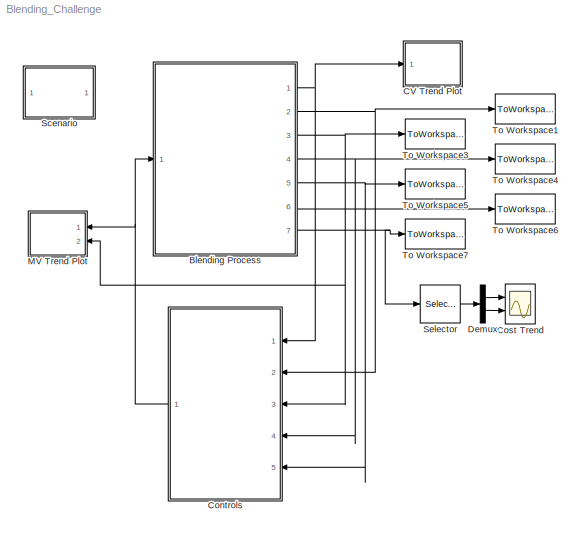
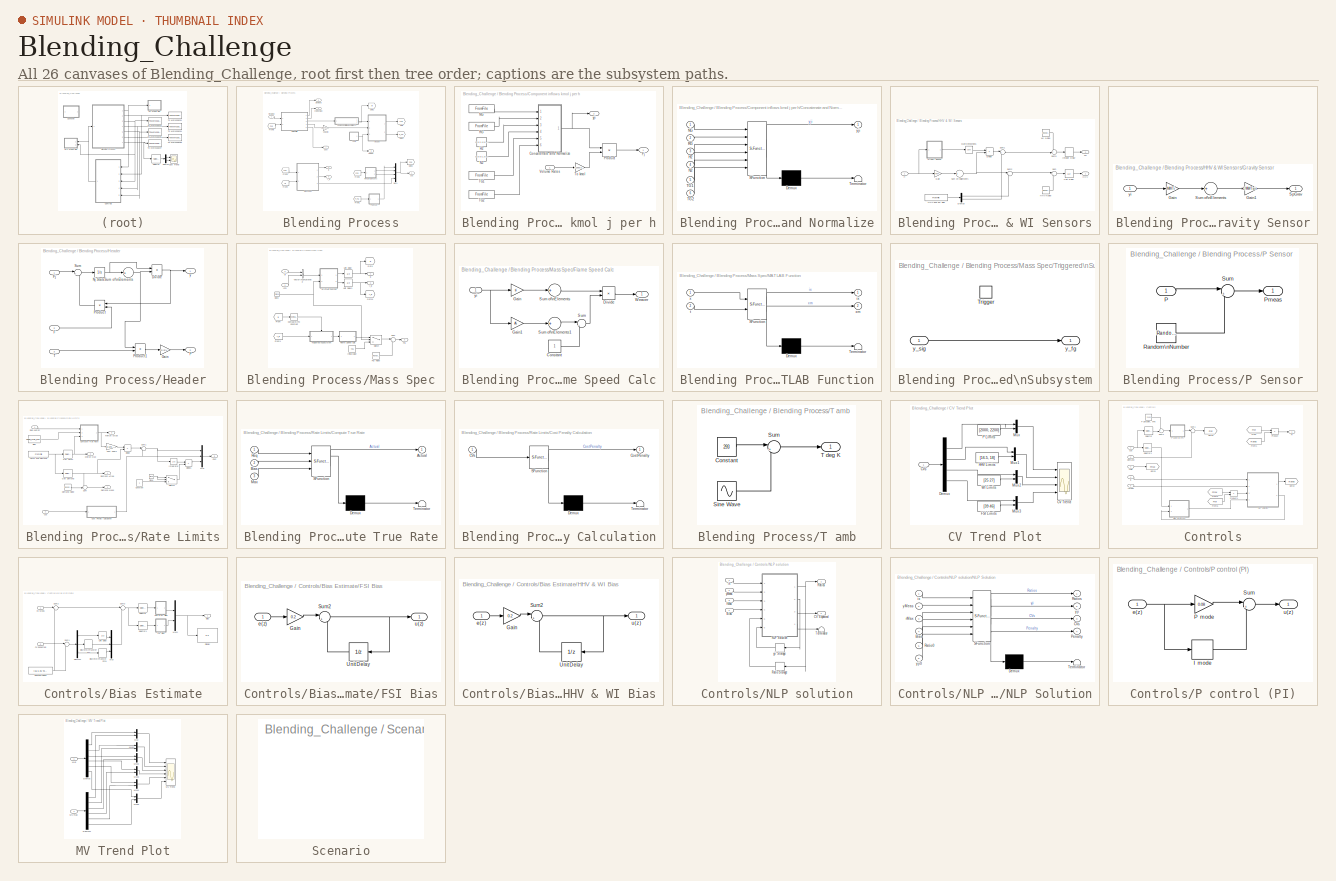
[diagram: thumbnail index - all 26 canvases of the model, root first then tree order]
MODEL Blending_Challenge
KIND model
CONFIG InitFcn = FG_Initialize_Data
CONFIG StopFcn = FG_Cleanup_Data
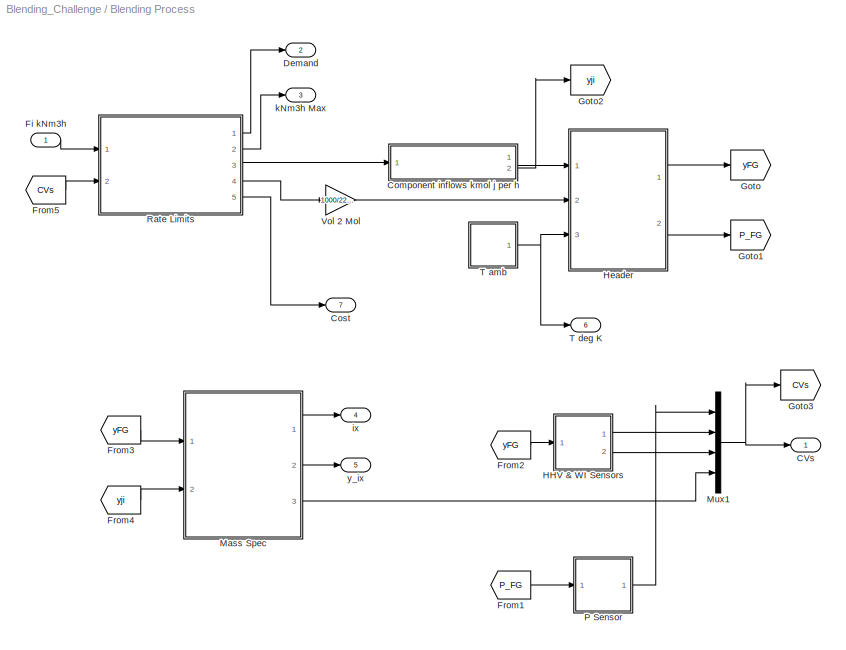
BLOCK [SubSystem] Blending Process
  Ports = [1, 7]
  RequestExecContextInheritance = off
  SID = 861
BLOCK [Outport] Blending Process/CVs
  IconDisplay = Port number
  SID = 991
  SampleTime = 20/3600
BLOCK [SubSystem] Blending Process/Component inflows kmol j per h
  Ports = [1, 2]
  RequestExecContextInheritance = off
  SID = 863
BLOCK [SubSystem] Blending Process/Component inflows kmol j per h/Concatenate and Normalize
  ErrorFcn = Stateflow.Translate.translate
  PermitHierarchicalResolution = ExplicitOnly
  Ports = [6, 1]
  RequestExecContextInheritance = off
  SFBlockType = MATLAB Function
  SID = 865
  TreatAsAtomicUnit = on
BLOCK [Demux] Blending Process/Component inflows kmol j per h/Concatenate and Normalize/ Demux 
  Outputs = 1
  Ports = [1, 1]
  SID = 865::32
BLOCK [S-Function] Blending Process/Component inflows kmol j per h/Concatenate and Normalize/ SFunction 
  EnableBusSupport = off
  FunctionName = sf_sfun
  PortCounts = [6 2]
  Ports = [6, 2]
  SFcnIsStateOwnerBlock = off
  SFunctionDeploymentMode = off
  SID = 865::31
  Tag = Stateflow S-Function 2
BLOCK [Terminator] Blending Process/Component inflows kmol j per h/Concatenate and Normalize/ Terminator 
  SID = 865::33
BLOCK [Inport] Blending Process/Component inflows kmol j per h/Concatenate and Normalize/H2
  IconDisplay = Port number
  Port = 3
  SID = 865::19
BLOCK [Inport] Blending Process/Component inflows kmol j per h/Concatenate and Normalize/N2
  IconDisplay = Port number
  Port = 4
  SID = 865::20
BLOCK [Inport] Blending Process/Component inflows kmol j per h/Concatenate and Normalize/NG
  IconDisplay = Port number
  SID = 865::1
BLOCK [Inport] Blending Process/Component inflows kmol j per h/Concatenate and Normalize/RG
  IconDisplay = Port number
  Port = 2
  SID = 865::18
BLOCK [Inport] Blending Process/Component inflows kmol j per h/Concatenate and Normalize/TG1
  IconDisplay = Port number
  Port = 5
  SID = 865::21
BLOCK [Inport] Blending Process/Component inflows kmol j per h/Concatenate and Normalize/TG2
  IconDisplay = Port number
  Port = 6
  SID = 865::22
BLOCK [Outport] Blending Process/Component inflows kmol j per h/Concatenate and Normalize/yji
  IconDisplay = Port number
  SID = 865::5
BLOCK [Outport] Blending Process/Component inflows kmol j per h/Fj
  IconDisplay = Port number
  SID = 875
BLOCK [Constant] Blending Process/Component inflows kmol j per h/H2
  SID = 867
  SampleTime = 20/3600
  Value = [0 0 1 0 0 0]'
  VectorParams1D = off
BLOCK [Constant] Blending Process/Component inflows kmol j per h/N2
  SID = 868
  SampleTime = 20/3600
  Value = [0 0 0 1 0 0]'
  VectorParams1D = off
BLOCK [FromFile] Blending Process/Component inflows kmol j per h/NG
  ExtrapolationAfterLastDataPoint = Hold last value
  ExtrapolationBeforeFirstDataPoint = Hold first value
  FileName = ScenarioNG
  SID = 869
  SampleTime = 20/3600
BLOCK [Product] Blending Process/Component inflows kmol j per h/Product
  InputSameDT = off
  Multiplication = Matrix(*)
  OutDataTypeStr = Inherit: Inherit via internal rule
  Ports = [2, 1]
  SID = 870
  SaturateOnIntegerOverflow = off
BLOCK [FromFile] Blending Process/Component inflows kmol j per h/RG
  ExtrapolationAfterLastDataPoint = Hold last value
  ExtrapolationBeforeFirstDataPoint = Hold first value
  FileName = ScenarioRG
  SID = 871
  SampleTime = 20/3600
BLOCK [FromFile] Blending Process/Component inflows kmol j per h/TG1
  ExtrapolationAfterLastDataPoint = Hold last value
  ExtrapolationBeforeFirstDataPoint = Hold first value
  FileName = ScenarioTG1
  SID = 872
  SampleTime = 20/3600
BLOCK [FromFile] Blending Process/Component inflows kmol j per h/TG2
  ExtrapolationAfterLastDataPoint = Hold last value
  ExtrapolationBeforeFirstDataPoint = Hold first value
  FileName = ScenarioTG2
  SID = 873
  SampleTime = 20/3600
BLOCK [Gain] Blending Process/Component inflows kmol j per h/To kmol
  Gain = (1000/22.4)*ones(6,1)
  OutDataTypeStr = Inherit: Inherit via internal rule
  ParamDataTypeStr = Inherit: Inherit via internal rule
  SID = 874
  SaturateOnIntegerOverflow = off
BLOCK [Inport] Blending Process/Component inflows kmol j per h/Volume Rates
  IconDisplay = Port number
  SID = 864
BLOCK [Outport] Blending Process/Component inflows kmol j per h/yji
  IconDisplay = Port number
  Port = 2
  SID = 876
BLOCK [Outport] Blending Process/Cost
  IconDisplay = Port number
  Port = 7
  SID = 998
  SampleTime = 20/3600
BLOCK [Outport] Blending Process/Demand
  IconDisplay = Port number
  Port = 2
  SID = 992
  SampleTime = 20/3600
BLOCK [Inport] Blending Process/Fi  kNm3h
  IconDisplay = Port number
  SID = 862
BLOCK [From] Blending Process/From1
  GotoTag = P_FG
  SID = 877
BLOCK [From] Blending Process/From2
  GotoTag = yFG
  SID = 878
BLOCK [From] Blending Process/From3
  GotoTag = yFG
  SID = 879
BLOCK [From] Blending Process/From4
  GotoTag = yji
  SID = 880
BLOCK [From] Blending Process/From5
  GotoTag = CVs
  SID = 881
BLOCK [Goto] Blending Process/Goto
  GotoTag = yFG
  SID = 882
BLOCK [Goto] Blending Process/Goto1
  GotoTag = P_FG
  SID = 883
BLOCK [Goto] Blending Process/Goto2
  GotoTag = yji
  SID = 884
BLOCK [Goto] Blending Process/Goto3
  GotoTag = CVs
  SID = 885
BLOCK [SubSystem] Blending Process/HHV & WI Sensors
  Ports = [1, 2]
  RequestExecContextInheritance = off
  SID = 1062
BLOCK [Demux] Blending Process/HHV & WI Sensors/Demux
  DisplayOption = bar
  Outputs = 2
  Ports = [1, 2]
  SID = 1064
BLOCK [Product] Blending Process/HHV & WI Sensors/Divide
  InputSameDT = off
  Inputs = /*
  OutDataTypeStr = Inherit: Inherit via internal rule
  Ports = [2, 1]
  RndMeth = Floor
  SID = 1065
  SaturateOnIntegerOverflow = off
BLOCK [Gain] Blending Process/HHV & WI Sensors/Gain
  Gain = HHVi
  OutDataTypeStr = Inherit: Inherit via internal rule
  ParamDataTypeStr = Inherit: Inherit via internal rule
  SID = 1067
  SaturateOnIntegerOverflow = off
BLOCK [SubSystem] Blending Process/HHV & WI Sensors/Gravity Sensor
  Ports = [1, 1]
  RequestExecContextInheritance = off
  SID = 1068
BLOCK [Gain] Blending Process/HHV & WI Sensors/Gravity Sensor/Gain
  Gain = MWTi
  OutDataTypeStr = Inherit: Inherit via internal rule
  ParamDataTypeStr = Inherit: Inherit via internal rule
  SID = 1070
  SaturateOnIntegerOverflow = off
BLOCK [Gain] Blending Process/HHV & WI Sensors/Gravity Sensor/Gain1
  Gain = 1/MWTair
  OutDataTypeStr = Inherit: Inherit via internal rule
  ParamDataTypeStr = Inherit: Inherit via internal rule
  SID = 1071
  SaturateOnIntegerOverflow = off
BLOCK [Outport] Blending Process/HHV & WI Sensors/Gravity Sensor/SpGrav
  IconDisplay = Port number
  SID = 1073
BLOCK [Sum] Blending Process/HHV & WI Sensors/Gravity Sensor/Sum of\nElements
  InputSameDT = off
  Inputs = +
  OutDataTypeStr = Inherit: Inherit via internal rule
  Ports = [1, 1]
  SID = 1072
  SaturateOnIntegerOverflow = off
BLOCK [Inport] Blending Process/HHV & WI Sensors/Gravity Sensor/yi
  IconDisplay = Port number
  PortDimensions = Nc
  SID = 1069
BLOCK [Outport] Blending Process/HHV & WI Sensors/HHV
  IconDisplay = Port number
  SID = 1089
BLOCK [RandomNumber] Blending Process/HHV & WI Sensors/HHV Noise
  SID = 1074
  SampleTime = 20/3600
  Seed = Fuel_Gas_HHV_Seed(FG_Scenario)
  Variance = 0.0049
BLOCK [FromFile] Blending Process/HHV & WI Sensors/HHV and SG bias
  ExtrapolationAfterLastDataPoint = Hold last value
  ExtrapolationBeforeFirstDataPoint = Hold first value
  FileName = ScenarioBias.mat
  SID = 1075
  SampleTime = 20/3600
BLOCK [DiscreteTransferFcn] Blending Process/HHV & WI Sensors/Integer Delay
  Denominator = [1 0 0 0]
  InitialStates = 25
  InputPortMap = u0
  Numerator = 1
  Ports = [1, 1]
  SID = 1156
  SampleTime = 20/3600
BLOCK [Math] Blending Process/HHV & WI Sensors/Math\nFunction1
  Operator = sqrt
  Ports = [1, 1]
  SID = 1077
BLOCK [Sum] Blending Process/HHV & WI Sensors/Sum
  IconShape = round
  InputSameDT = off
  Inputs = |++
  OutDataTypeStr = Inherit: Inherit via internal rule
  Ports = [2, 1]
  SID = 1080
  SaturateOnIntegerOverflow = off
BLOCK [Sum] Blending Process/HHV & WI Sensors/Sum of\nElements
  InputSameDT = off
  Inputs = +
  OutDataTypeStr = Inherit: Inherit via internal rule
  Ports = [1, 1]
  SID = 1081
  SaturateOnIntegerOverflow = off
BLOCK [Sum] Blending Process/HHV & WI Sensors/Sum1
  IconShape = round
  InputSameDT = off
  Inputs = |++
  OutDataTypeStr = Inherit: Inherit via internal rule
  Ports = [2, 1]
  SID = 1095
  SaturateOnIntegerOverflow = off
BLOCK [Sum] Blending Process/HHV & WI Sensors/Sum2
  IconShape = round
  InputSameDT = off
  Inputs = |++
  OutDataTypeStr = Inherit: Inherit via internal rule
  Ports = [2, 1]
  SID = 1092
  SaturateOnIntegerOverflow = off
BLOCK [Sum] Blending Process/HHV & WI Sensors/Sum3
  IconShape = round
  InputSameDT = off
  Inputs = ++|
  OutDataTypeStr = Inherit: Inherit via internal rule
  Ports = [2, 1]
  SID = 1096
  SaturateOnIntegerOverflow = off
BLOCK [UnitDelay] Blending Process/HHV & WI Sensors/Unit Delay
  HasFrameUpgradeWarning = on
  InitialCondition = 16.5
  SID = 1087
  SampleTime = 20/3600
BLOCK [Outport] Blending Process/HHV & WI Sensors/WI
  IconDisplay = Port number
  Port = 2
  SID = 1090
BLOCK [RandomNumber] Blending Process/HHV & WI Sensors/WI Noise
  SID = 1088
  SampleTime = 20/3600
  Seed = Fuel_Gas_WI_Seed(FG_Scenario)
  Variance = 0.0049
BLOCK [Inport] Blending Process/HHV & WI Sensors/yi
  IconDisplay = Port number
  PortDimensions = Nc
  SID = 1063
  SampleTime = 20/3600
BLOCK [SubSystem] Blending Process/Header
  Ports = [3, 2]
  RequestExecContextInheritance = off
  SID = 910
BLOCK [Product] Blending Process/Header/Divide
  InputSameDT = off
  Inputs = */
  OutDataTypeStr = Inherit: Inherit via internal rule
  Ports = [2, 1]
  RndMeth = Floor
  SID = 914
  SaturateOnIntegerOverflow = off
BLOCK [Inport] Blending Process/Header/F
  IconDisplay = Port number
  Port = 2
  PortDimensions = 1
  SID = 912
BLOCK [Inport] Blending Process/Header/Fj
  IconDisplay = Port number
  PortDimensions = Nc
  SID = 911
BLOCK [Gain] Blending Process/Header/Gain
  Gain = R*Z/V
  OutDataTypeStr = Inherit: Inherit via internal rule
  ParamDataTypeStr = Inherit: Inherit via internal rule
  SID = 915
  SaturateOnIntegerOverflow = off
BLOCK [Integrator] Blending Process/Header/Nj States
  InitialCondition = Ni0
  LimitOutput = on
  LowerSaturationLimit = 0
  Ports = [1, 1]
  SID = 916
BLOCK [Outport] Blending Process/Header/P
  IconDisplay = Port number
  Port = 2
  SID = 922
BLOCK [Product] Blending Process/Header/Product
  InputSameDT = off
  OutDataTypeStr = Inherit: Inherit via internal rule
  Ports = [2, 1]
  SID = 917
  SaturateOnIntegerOverflow = off
BLOCK [Product] Blending Process/Header/Product1
  InputSameDT = off
  OutDataTypeStr = Inherit: Inherit via internal rule
  Ports = [2, 1]
  SID = 918
  SaturateOnIntegerOverflow = off
BLOCK [Sum] Blending Process/Header/Sum
  IconShape = round
  InputSameDT = off
  Inputs = |+-
  OutDataTypeStr = Inherit: Inherit via internal rule
  Ports = [2, 1]
  SID = 919
  SaturateOnIntegerOverflow = off
BLOCK [Sum] Blending Process/Header/Sum of\nElements
  InputSameDT = off
  Inputs = +
  OutDataTypeStr = Inherit: Inherit via internal rule
  Ports = [1, 1]
  SID = 920
  SaturateOnIntegerOverflow = off
BLOCK [Inport] Blending Process/Header/T
  IconDisplay = Port number
  Port = 3
  PortDimensions = 1
  SID = 913
BLOCK [Outport] Blending Process/Header/y
  IconDisplay = Port number
  SID = 921
BLOCK [SubSystem] Blending Process/Mass Spec
  Ports = [2, 3]
  RequestExecContextInheritance = off
  SID = 923
BLOCK [Clock] Blending Process/Mass Spec/Clock
  SID = 926
BLOCK [Reference] Blending Process/Mass Spec/Compare\nTo Constant  REF=simulink/Logic and Bit\nOperations/Compare\nTo Constant
  OutDataTypeStr = uint8
  Ports = [1, 1]
  SID = 927
  SourceBlock = simulink/Logic and Bit\nOperations/Compare\nTo Constant
  SourceProductBaseCode = SL
  SourceProductName = Simulink
  SourceType = Compare To Constant
  ZeroCross = on
  const = 7
  relop = ==
BLOCK [Outport] Blending Process/Mass Spec/FSI
  IconDisplay = Port number
  Port = 3
  SID = 954
  SampleTime = 20/3600
BLOCK [RandomNumber] Blending Process/Mass Spec/FSI Noise
  SID = 1151
  SampleTime = 10/60
  Seed = Fuel_Gas_HHV_Seed(FG_Scenario)+4324
  Variance = 0.0049
BLOCK [SubSystem] Blending Process/Mass Spec/Flame Speed Calc
  Ports = [1, 1]
  RequestExecContextInheritance = off
  SID = 928
BLOCK [Constant] Blending Process/Mass Spec/Flame Speed Calc/Constant
  SID = 930
BLOCK [Product] Blending Process/Mass Spec/Flame Speed Calc/Divide
  InputSameDT = off
  Inputs = */
  OutDataTypeStr = Inherit: Inherit via internal rule
  Ports = [2, 1]
  RndMeth = Floor
  SID = 931
  SaturateOnIntegerOverflow = off
BLOCK [Gain] Blending Process/Mass Spec/Flame Speed Calc/Gain
  Gain = si
  OutDataTypeStr = Inherit: Inherit via internal rule
  ParamDataTypeStr = Inherit: Inherit via internal rule
  SID = 932
  SaturateOnIntegerOverflow = off
BLOCK [Gain] Blending Process/Mass Spec/Flame Speed Calc/Gain1
  Gain = Ai
  OutDataTypeStr = Inherit: Inherit via internal rule
  ParamDataTypeStr = Inherit: Inherit via internal rule
  SID = 933
  SaturateOnIntegerOverflow = off
BLOCK [Sum] Blending Process/Mass Spec/Flame Speed Calc/Sum
  IconShape = round
  InputSameDT = off
  Inputs = |++
  OutDataTypeStr = Inherit: Inherit via internal rule
  Ports = [2, 1]
  SID = 934
  SaturateOnIntegerOverflow = off
BLOCK [Sum] Blending Process/Mass Spec/Flame Speed Calc/Sum of\nElements
  InputSameDT = off
  Inputs = +
  OutDataTypeStr = Inherit: Inherit via internal rule
  Ports = [1, 1]
  SID = 935
  SaturateOnIntegerOverflow = off
BLOCK [Sum] Blending Process/Mass Spec/Flame Speed Calc/Sum of\nElements1
  InputSameDT = off
  Inputs = +
  OutDataTypeStr = Inherit: Inherit via internal rule
  Ports = [1, 1]
  SID = 936
  SaturateOnIntegerOverflow = off
BLOCK [Outport] Blending Process/Mass Spec/Flame Speed Calc/Weaver
  IconDisplay = Port number
  SID = 937
BLOCK [Inport] Blending Process/Mass Spec/Flame Speed Calc/yi
  IconDisplay = Port number
  PortDimensions = Nc
  SID = 929
BLOCK [From] Blending Process/Mass Spec/From
  GotoTag = ix
  SID = 938
BLOCK [From] Blending Process/Mass Spec/From1
  GotoTag = y_ix
  SID = 939
BLOCK [Goto] Blending Process/Mass Spec/Goto
  GotoTag = ix
  SID = 940
BLOCK [Goto] Blending Process/Mass Spec/Goto1
  GotoTag = y_ix
  SID = 941
BLOCK [Constant] Blending Process/Mass Spec/Initial value
  SID = 942
  Value = 43.6
BLOCK [SubSystem] Blending Process/Mass Spec/MATLAB Function
  ErrorFcn = Stateflow.Translate.translate
  PermitHierarchicalResolution = ExplicitOnly
  Ports = [2, 2]
  RequestExecContextInheritance = off
  SFBlockType = MATLAB Function
  SID = 943
  SystemSampleTime = 2/60
  TreatAsAtomicUnit = on
BLOCK [Demux] Blending Process/Mass Spec/MATLAB Function/ Demux 
  Outputs = 1
  Ports = [1, 1]
  SID = 943::33
BLOCK [S-Function] Blending Process/Mass Spec/MATLAB Function/ SFunction 
  EnableBusSupport = off
  FunctionName = sf_sfun
  PortCounts = [2 3]
  Ports = [2, 3]
  SFcnIsStateOwnerBlock = off
  SFunctionDeploymentMode = off
  SID = 943::32
  Tag = Stateflow S-Function 3
BLOCK [Terminator] Blending Process/Mass Spec/MATLAB Function/ Terminator 
  SID = 943::34
BLOCK [Outport] Blending Process/Mass Spec/MATLAB Function/ix
  IconDisplay = Port number
  SID = 943::5
BLOCK [Inport] Blending Process/Mass Spec/MATLAB Function/t
  IconDisplay = Port number
  Port = 2
  SID = 943::18
BLOCK [Inport] Blending Process/Mass Spec/MATLAB Function/x
  IconDisplay = Port number
  SID = 943::1
BLOCK [Outport] Blending Process/Mass Spec/MATLAB Function/xm
  IconDisplay = Port number
  Port = 2
  SID = 943::19
BLOCK [Sum] Blending Process/Mass Spec/Sum
  IconShape = round
  InputSameDT = off
  Inputs = |++
  OutDataTypeStr = Inherit: Inherit via internal rule
  Ports = [2, 1]
  SID = 1152
  SaturateOnIntegerOverflow = off
BLOCK [Switch] Blending Process/Mass Spec/Switch
  InputSameDT = off
  SID = 944
  SampleTime = 2/60
  SaturateOnIntegerOverflow = off
  Threshold = 12/60
BLOCK [SubSystem] Blending Process/Mass Spec/Triggered\nSubsystem
  Ports = [1, 1, 0, 1]
  RequestExecContextInheritance = off
  SID = 945
  TreatAsAtomicUnit = on
BLOCK [TriggerPort] Blending Process/Mass Spec/Triggered\nSubsystem/Trigger
  Ports = []
  SID = 947
  StatesWhenEnabling = held
  VariantControl = (inherit)
BLOCK [Outport] Blending Process/Mass Spec/Triggered\nSubsystem/y_fg
  IconDisplay = Port number
  SID = 948
BLOCK [Inport] Blending Process/Mass Spec/Triggered\nSubsystem/y_sig
  IconDisplay = Port number
  SID = 946
BLOCK [UnitDelay] Blending Process/Mass Spec/Unit Delay
  HasFrameUpgradeWarning = on
  InitialCondition = 7
  SID = 949
  SampleTime = 2/60
BLOCK [UnitDelay] Blending Process/Mass Spec/Unit Delay1
  HasFrameUpgradeWarning = on
  InitialCondition = [14.7311, 1.0107, 47.8064, 4.5173, 9.6596, 5.9680]'/83.6931
  SID = 950
  SampleTime = 2/60
BLOCK [Concatenate] Blending Process/Mass Spec/Vector\nConcatenate
  ConcatenateDimension = 2
  Mode = Multidimensional array
  Ports = [2, 1]
  SID = 951
BLOCK [Outport] Blending Process/Mass Spec/ix
  IconDisplay = Port number
  SID = 952
  SampleTime = 20/3600
BLOCK [Inport] Blending Process/Mass Spec/yFG
  IconDisplay = Port number
  SID = 924
  SampleTime = 20/3600
BLOCK [Outport] Blending Process/Mass Spec/y_ix
  IconDisplay = Port number
  Port = 2
  SID = 953
  SampleTime = 20/3600
BLOCK [Inport] Blending Process/Mass Spec/yji
  IconDisplay = Port number
  Port = 2
  SID = 925
  SampleTime = 20/3600
BLOCK [Mux] Blending Process/Mux1
  DisplayOption = bar
  Ports = [4, 1]
  SID = 955
BLOCK [SubSystem] Blending Process/P Sensor
  Ports = [1, 1]
  RequestExecContextInheritance = off
  SID = 956
BLOCK [Inport] Blending Process/P Sensor/P
  IconDisplay = Port number
  PortDimensions = 1
  SID = 957
  SampleTime = 20/3600
BLOCK [Outport] Blending Process/P Sensor/Pmeas
  IconDisplay = Port number
  SID = 960
BLOCK [RandomNumber] Blending Process/P Sensor/Random\nNumber
  SID = 958
  SampleTime = 20/3600
  Seed = 4983498
  Variance = 25
BLOCK [Sum] Blending Process/P Sensor/Sum
  IconShape = round
  InputSameDT = off
  Inputs = |++
  OutDataTypeStr = Inherit: Inherit via internal rule
  Ports = [2, 1]
  SID = 959
  SaturateOnIntegerOverflow = off
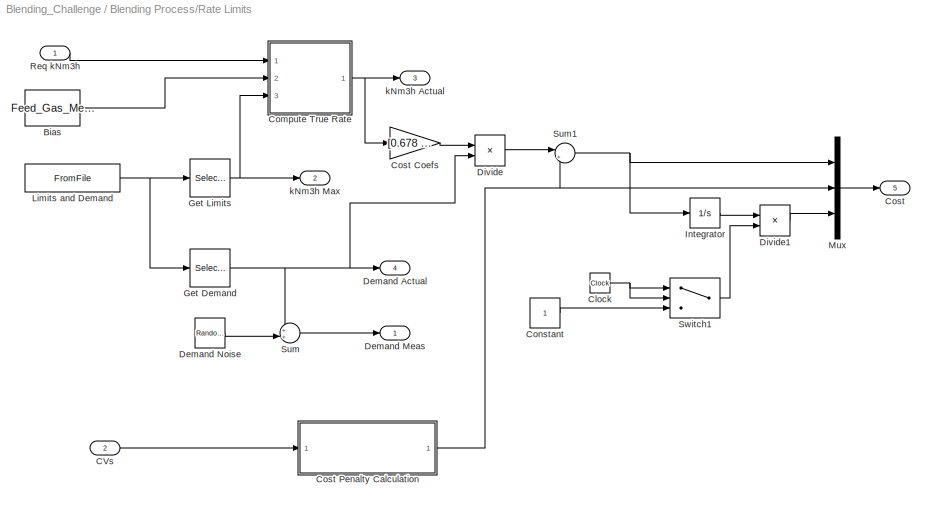
BLOCK [SubSystem] Blending Process/Rate Limits
  Ports = [2, 5]
  RequestExecContextInheritance = off
  SID = 961
BLOCK [Constant] Blending Process/Rate Limits/Bias
  SID = 1094
  Value = Feed_Gas_Metering_Bias(FG_Scenario,:)
BLOCK [Inport] Blending Process/Rate Limits/CVs
  IconDisplay = Port number
  OutDataTypeStr = double
  OutMin = 0
  Port = 2
  PortDimensions = 4
  SID = 963
BLOCK [Clock] Blending Process/Rate Limits/Clock
  SID = 964
BLOCK [SubSystem] Blending Process/Rate Limits/Compute True Rate
  ErrorFcn = Stateflow.Translate.translate
  PermitHierarchicalResolution = ExplicitOnly
  Ports = [3, 1]
  RequestExecContextInheritance = off
  SFBlockType = MATLAB Function
  SID = 1093
  TreatAsAtomicUnit = on
BLOCK [Demux] Blending Process/Rate Limits/Compute True Rate/ Demux 
  Outputs = 1
  Ports = [1, 1]
  SID = 1093::29
BLOCK [S-Function] Blending Process/Rate Limits/Compute True Rate/ SFunction 
  EnableBusSupport = off
  FunctionName = sf_sfun
  PortCounts = [3 2]
  Ports = [3, 2]
  SFcnIsStateOwnerBlock = off
  SFunctionDeploymentMode = off
  SID = 1093::28
  Tag = Stateflow S-Function 5
BLOCK [Terminator] Blending Process/Rate Limits/Compute True Rate/ Terminator 
  SID = 1093::30
BLOCK [Outport] Blending Process/Rate Limits/Compute True Rate/Actual
  IconDisplay = Port number
  SID = 1093::5
BLOCK [Inport] Blending Process/Rate Limits/Compute True Rate/Bias
  IconDisplay = Port number
  Port = 2
  SID = 1093::18
BLOCK [Inport] Blending Process/Rate Limits/Compute True Rate/Max
  IconDisplay = Port number
  Port = 3
  SID = 1093::19
BLOCK [Inport] Blending Process/Rate Limits/Compute True Rate/Req
  IconDisplay = Port number
  SID = 1093::1
BLOCK [Constant] Blending Process/Rate Limits/Constant
  SID = 965
BLOCK [Outport] Blending Process/Rate Limits/Cost
  IconDisplay = Port number
  Port = 5
  SID = 984
  SampleTime = 20/3600
BLOCK [Gain] Blending Process/Rate Limits/Cost Coefs
  Gain = [0.678 0.254 0 0.068 0 0]
  Multiplication = Matrix(K*u)
  OutDataTypeStr = Inherit: Inherit via internal rule
  ParamDataTypeStr = Inherit: Inherit via internal rule
  SID = 966
  SaturateOnIntegerOverflow = off
BLOCK [SubSystem] Blending Process/Rate Limits/Cost Penalty Calculation
  ErrorFcn = Stateflow.Translate.translate
  PermitHierarchicalResolution = ExplicitOnly
  Ports = [1, 1]
  RequestExecContextInheritance = off
  SFBlockType = MATLAB Function
  SID = 974
  TreatAsAtomicUnit = on
BLOCK [Demux] Blending Process/Rate Limits/Cost Penalty Calculation/ Demux 
  Outputs = 1
  Ports = [1, 1]
  SID = 974::27
BLOCK [S-Function] Blending Process/Rate Limits/Cost Penalty Calculation/ SFunction 
  EnableBusSupport = off
  FunctionName = sf_sfun
  PortCounts = [1 2]
  Ports = [1, 2]
  SFcnIsStateOwnerBlock = off
  SFunctionDeploymentMode = off
  SID = 974::26
  Tag = Stateflow S-Function 4
BLOCK [Terminator] Blending Process/Rate Limits/Cost Penalty Calculation/ Terminator 
  SID = 974::28
BLOCK [Inport] Blending Process/Rate Limits/Cost Penalty Calculation/CVs
  IconDisplay = Port number
  SID = 974::1
BLOCK [Outport] Blending Process/Rate Limits/Cost Penalty Calculation/CostPenalty
  IconDisplay = Port number
  SID = 974::5
BLOCK [Outport] Blending Process/Rate Limits/Demand Actual
  IconDisplay = Port number
  Port = 4
  SID = 983
  SampleTime = 20/3600
BLOCK [Outport] Blending Process/Rate Limits/Demand Meas
  IconDisplay = Port number
  SID = 980
  SampleTime = 20/3600
BLOCK [RandomNumber] Blending Process/Rate Limits/Demand Noise
  SID = 967
  SampleTime = 10/3600
  Seed = Fuel_Gas_Demand_Seed(FG_Scenario)
  Variance = 0.8
BLOCK [Product] Blending Process/Rate Limits/Divide
  InputSameDT = off
  Inputs = */
  OutDataTypeStr = Inherit: Inherit via internal rule
  Ports = [2, 1]
  RndMeth = Floor
  SID = 968
  SaturateOnIntegerOverflow = off
BLOCK [Product] Blending Process/Rate Limits/Divide1
  InputSameDT = off
  Inputs = */
  OutDataTypeStr = Inherit: Inherit via internal rule
  Ports = [2, 1]
  RndMeth = Floor
  SID = 969
  SaturateOnIntegerOverflow = off
BLOCK [Selector] Blending Process/Rate Limits/Get Demand
  IndexOptions = Index vector (dialog)
  Indices = 7
  InputPortWidth = 7
  OutputSizes = 1
  Ports = [1, 1]
  SID = 970
BLOCK [Selector] Blending Process/Rate Limits/Get Limits
  IndexOptions = Index vector (dialog)
  Indices = 1:6
  InputPortWidth = 7
  OutputSizes = 1
  Ports = [1, 1]
  SID = 971
BLOCK [Integrator] Blending Process/Rate Limits/Integrator
  Ports = [1, 1]
  SID = 972
BLOCK [FromFile] Blending Process/Rate Limits/Limits and Demand
  ExtrapolationAfterLastDataPoint = Hold last value
  ExtrapolationBeforeFirstDataPoint = Hold first value
  FileName = ScenarioAvail.mat
  SID = 973
  SampleTime = 20/3600
BLOCK [Mux] Blending Process/Rate Limits/Mux
  DisplayOption = bar
  Inputs = 3
  Ports = [3, 1]
  SID = 976
BLOCK [Inport] Blending Process/Rate Limits/Req kNm3h
  IconDisplay = Port number
  OutDataTypeStr = double
  OutMin = 0
  PortDimensions = 6
  SID = 962
BLOCK [Sum] Blending Process/Rate Limits/Sum
  IconShape = round
  InputSameDT = off
  Inputs = ++|
  OutDataTypeStr = Inherit: Inherit via internal rule
  Ports = [2, 1]
  SID = 977
  SaturateOnIntegerOverflow = off
BLOCK [Sum] Blending Process/Rate Limits/Sum1
  IconShape = round
  InputSameDT = off
  Inputs = |++
  OutDataTypeStr = Inherit: Inherit via internal rule
  Ports = [2, 1]
  SID = 978
  SaturateOnIntegerOverflow = off
BLOCK [Switch] Blending Process/Rate Limits/Switch1
  Criteria = u2 > Threshold
  InputSameDT = off
  SID = 979
  SaturateOnIntegerOverflow = off
BLOCK [Outport] Blending Process/Rate Limits/kNm3h Actual
  IconDisplay = Port number
  Port = 3
  SID = 982
  SampleTime = 20/3600
BLOCK [Outport] Blending Process/Rate Limits/kNm3h Max
  IconDisplay = Port number
  Port = 2
  SID = 981
  SampleTime = 20/3600
BLOCK [SubSystem] Blending Process/T amb
  Ports = [0, 1]
  RequestExecContextInheritance = off
  SID = 985
BLOCK [Constant] Blending Process/T amb/Constant
  SID = 986
  Value = 293
BLOCK [Sin] Blending Process/T amb/Sine Wave
  Amplitude = 10
  Frequency = 2*pi/24
  Ports = [0, 1]
  SID = 987
  SampleTime = 20/3600
BLOCK [Sum] Blending Process/T amb/Sum
  IconShape = round
  InputSameDT = off
  Inputs = |++
  OutDataTypeStr = Inherit: Inherit via internal rule
  Ports = [2, 1]
  SID = 988
  SaturateOnIntegerOverflow = off
BLOCK [Outport] Blending Process/T amb/T deg K
  IconDisplay = Port number
  SID = 989
BLOCK [Outport] Blending Process/T deg K
  IconDisplay = Port number
  Port = 6
  SID = 997
  SampleTime = 20/3600
BLOCK [Gain] Blending Process/Vol 2 Mol
  Gain = 1000/22.4
  OutDataTypeStr = Inherit: Inherit via internal rule
  ParamDataTypeStr = Inherit: Inherit via internal rule
  SID = 990
  SaturateOnIntegerOverflow = off
BLOCK [Outport] Blending Process/ix
  IconDisplay = Port number
  Port = 4
  SID = 995
  SampleTime = 20/3600
BLOCK [Outport] Blending Process/kNm3h Max
  IconDisplay = Port number
  Port = 3
  SID = 994
  SampleTime = 20/3600
BLOCK [Outport] Blending Process/y_ix
  IconDisplay = Port number
  Port = 5
  SID = 996
  SampleTime = 20/3600
BLOCK [SubSystem] CV Trend Plot
  Ports = [1]
  RequestExecContextInheritance = off
  SID = 416
BLOCK [Scope] CV Trend Plot/CV Trend
  Floating = off
  NumInputPorts = 4
  Ports = [4]
  SID = 422
  ScopeSpecificationString = C++SS(StrPVP('Location','[397, 49, 859, 662]'),StrPVP('Open','on'),StrPVP('ZoomMode','xonly'),MxPVP('AxesTitles',54,'struct(''axes1'',''P, kPa'',''axes2'',''HHV'',''axes3'',''WI'',''axes4'',''FSI'')'),MxPVP('ScopeGraphics',57,'struct(''FigureColor'',''[0.501960784313725 0.501960784313725 0.501960784313725]'',''AxesColor'',''[0 0 0]'',''AxesTickColor'',''[1 1 1]'',''LineColors'',''[1 1 0;1 0 1;0 1 ...<+477ch>
BLOCK [Inport] CV Trend Plot/CVs
  IconDisplay = Port number
  SID = 417
BLOCK [Demux] CV Trend Plot/Demux
  DisplayOption = bar
  Ports = [1, 4]
  SID = 419
BLOCK [Constant] CV Trend Plot/FSI Limits
  SID = 428
  Value = [39 46]
BLOCK [Constant] CV Trend Plot/HHV Limits
  SID = 424
  Value = [16.5, 18]
BLOCK [Mux] CV Trend Plot/Mux
  DisplayOption = bar
  Inputs = 2
  Ports = [2, 1]
  SID = 420
BLOCK [Mux] CV Trend Plot/Mux1
  DisplayOption = bar
  Inputs = 2
  Ports = [2, 1]
  SID = 423
BLOCK [Mux] CV Trend Plot/Mux2
  DisplayOption = bar
  Inputs = 2
  Ports = [2, 1]
  SID = 426
BLOCK [Mux] CV Trend Plot/Mux3
  DisplayOption = bar
  Inputs = 2
  Ports = [2, 1]
  SID = 427
BLOCK [Constant] CV Trend Plot/P Limits
  SID = 421
  Value = [2000, 2200]
BLOCK [Constant] CV Trend Plot/WI Limits
  SID = 425
  Value = [25 27]
BLOCK [SubSystem] Controls
  Ports = [5, 1]
  RequestExecContextInheritance = off
  SID = 320
BLOCK [Inport] Controls/Avail
  IconDisplay = Port number
  Port = 3
  SID = 324
BLOCK [SubSystem] Controls/Bias Estimate
  Ports = [2, 1]
  RequestExecContextInheritance = off
  SID = 1016
BLOCK [Outport] Controls/Bias Estimate/Bias
  IconDisplay = Port number
  SID = 1061
BLOCK [Inport] Controls/Bias Estimate/CV Expected
  IconDisplay = Port number
  Port = 2
  PortDimensions = 3
  SID = 1104
BLOCK [Inport] Controls/Bias Estimate/CV Meas
  IconDisplay = Port number
  PortDimensions = 3
  SID = 1017
BLOCK [Demux] Controls/Bias Estimate/Demux1
  DisplayOption = bar
  Outputs = 3
  Ports = [1, 3]
  SID = 1105
BLOCK [DiscreteTransferFcn] Controls/Bias Estimate/Discrete\nTransfer Fcn
  Denominator = [1 0 0 0]
  InputPortMap = u0
  Ports = [1, 1]
  SID = 1157
  SampleTime = 20/3600
BLOCK [DiscreteTransferFcn] Controls/Bias Estimate/Discrete\nTransfer Fcn1
  Denominator = [1 0 0 0 0 0 0]
  InputPortMap = u0
  Ports = [1, 1]
  SID = 1158
  SampleTime = 20/3600
BLOCK [Display] Controls/Bias Estimate/Display
  Decimation = 1
  Ports = [1]
  SID = 1112
BLOCK [SubSystem] Controls/Bias Estimate/FSI Bias
  Ports = [1, 1]
  RequestExecContextInheritance = off
  SID = 1131
BLOCK [Gain] Controls/Bias Estimate/FSI Bias/Gain
  Gain = 0.2
  OutDataTypeStr = Inherit: Inherit via internal rule
  ParamDataTypeStr = Inherit: Inherit via internal rule
  SID = 1150
  SaturateOnIntegerOverflow = off
BLOCK [Sum] Controls/Bias Estimate/FSI Bias/Sum2
  IconShape = round
  InputSameDT = off
  Inputs = |++
  OutDataTypeStr = Inherit: Inherit via internal rule
  Ports = [2, 1]
  SID = 1148
  SaturateOnIntegerOverflow = off
BLOCK [UnitDelay] Controls/Bias Estimate/FSI Bias/Unit Delay
  HasFrameUpgradeWarning = on
  SID = 1161
  SampleTime = -1
BLOCK [Inport] Controls/Bias Estimate/FSI Bias/e(z)
  IconDisplay = Port number
  SID = 1132
  SampleTime = 10/60
BLOCK [Outport] Controls/Bias Estimate/FSI Bias/u(z)
  IconDisplay = Port number
  SID = 1136
BLOCK [SubSystem] Controls/Bias Estimate/HHV & WI Bias
  Ports = [1, 1]
  RequestExecContextInheritance = off
  SID = 1125
BLOCK [Gain] Controls/Bias Estimate/HHV & WI Bias/Gain
  Gain = 0.2
  OutDataTypeStr = Inherit: Inherit via internal rule
  ParamDataTypeStr = Inherit: Inherit via internal rule
  SID = 1149
  SaturateOnIntegerOverflow = off
BLOCK [Sum] Controls/Bias Estimate/HHV & WI Bias/Sum2
  IconShape = round
  InputSameDT = off
  Inputs = |++
  OutDataTypeStr = Inherit: Inherit via internal rule
  Ports = [2, 1]
  SID = 1144
  SaturateOnIntegerOverflow = off
BLOCK [UnitDelay] Controls/Bias Estimate/HHV & WI Bias/Unit Delay
  HasFrameUpgradeWarning = on
  SID = 1160
  SampleTime = -1
BLOCK [Inport] Controls/Bias Estimate/HHV & WI Bias/e(z)
  IconDisplay = Port number
  SID = 1126
  SampleTime = 20/3600
BLOCK [Outport] Controls/Bias Estimate/HHV & WI Bias/u(z)
  IconDisplay = Port number
  SID = 1130
BLOCK [Mux] Controls/Bias Estimate/Mux
  DisplayOption = bar
  Inputs = 3
  Ports = [3, 1]
  SID = 1029
BLOCK [Mux] Controls/Bias Estimate/Mux1
  DisplayOption = bar
  Inputs = 2
  Ports = [2, 1]
  SID = 1115
BLOCK [Constant] Controls/Bias Estimate/Nominal values
  SID = 1026
  Value = [16.5 25 43.5]
BLOCK [Selector] Controls/Bias Estimate/Selector
  IndexOptions = Index vector (dialog)
  Indices = [1 2]
  InputPortWidth = 3
  OutputSizes = 1
  Ports = [1, 1]
  SID = 1117
BLOCK [Selector] Controls/Bias Estimate/Selector1
  IndexOptions = Index vector (dialog)
  Indices = [3]
  InputPortWidth = 3
  OutputSizes = 1
  Ports = [1, 1]
  SID = 1119
BLOCK [Sum] Controls/Bias Estimate/Sum1
  IconShape = round
  InputSameDT = off
  Inputs = |+-
  OutDataTypeStr = Inherit: Inherit via internal rule
  Ports = [2, 1]
  SID = 1103
  SaturateOnIntegerOverflow = off
BLOCK [Sum] Controls/Bias Estimate/Sum2
  IconShape = round
  InputSameDT = off
  Inputs = |+-
  OutDataTypeStr = Inherit: Inherit via internal rule
  Ports = [2, 1]
  SID = 1109
  SaturateOnIntegerOverflow = off
BLOCK [Sum] Controls/Bias Estimate/Sum3
  IconShape = round
  InputSameDT = off
  Inputs = |-+
  OutDataTypeStr = Inherit: Inherit via internal rule
  Ports = [2, 1]
  SID = 1111
  SaturateOnIntegerOverflow = off
BLOCK [UnitDelay] Controls/Bias Estimate/Unit Delay
  HasFrameUpgradeWarning = on
  SID = 1159
  SampleTime = 20/3600
BLOCK [Inport] Controls/CVs
  IconDisplay = Port number
  SID = 321
BLOCK [Inport] Controls/Demand
  IconDisplay = Port number
  Port = 2
  SID = 323
BLOCK [Outport] Controls/Fi
  IconDisplay = Port number
  SID = 322
BLOCK [From] Controls/From
  GotoTag = Ftot
  SID = 446
BLOCK [From] Controls/From1
  GotoTag = Ratios
  SID = 447
BLOCK [From] Controls/From5
  GotoTag = Fmax
  SID = 563
BLOCK [From] Controls/From6
  GotoTag = Ftot
  SID = 564
BLOCK [Goto] Controls/Goto2
  GotoTag = Ratios
  SID = 540
BLOCK [Goto] Controls/Goto3
  GotoTag = Fmax
  SID = 445
BLOCK [Goto] Controls/Goto9
  GotoTag = Ftot
  SID = 344
BLOCK [SubSystem] Controls/NLP solution
  Ports = [4, 2]
  RequestExecContextInheritance = off
  SID = 1007
BLOCK [Inport] Controls/NLP solution/Bias
  IconDisplay = Port number
  Port = 4
  SID = 1012
BLOCK [Outport] Controls/NLP solution/CV Expected
  IconDisplay = Port number
  Port = 2
  SID = 1102
BLOCK [SubSystem] Controls/NLP solution/NLP Solution
  ErrorFcn = Stateflow.Translate.translate
  PermitHierarchicalResolution = ExplicitOnly
  Ports = [6, 4]
  RequestExecContextInheritance = off
  SFBlockType = MATLAB Function
  SID = 1013
  SystemSampleTime = 20/3600
  TreatAsAtomicUnit = on
BLOCK [Demux] Controls/NLP solution/NLP Solution/ Demux 
  Outputs = 1
  Ports = [1, 1]
  SID = 1013::47
BLOCK [S-Function] Controls/NLP solution/NLP Solution/ SFunction 
  EnableBusSupport = off
  FunctionName = sf_sfun
  PortCounts = [6 5]
  Ports = [6, 5]
  SFcnIsStateOwnerBlock = off
  SFunctionDeploymentMode = off
  SID = 1013::46
  Tag = Stateflow S-Function 1
BLOCK [Terminator] Controls/NLP solution/NLP Solution/ Terminator 
  SID = 1013::48
BLOCK [Inport] Controls/NLP solution/NLP Solution/Bias
  IconDisplay = Port number
  Port = 4
  SID = 1013::26
BLOCK [Outport] Controls/NLP solution/NLP Solution/CVs
  IconDisplay = Port number
  Port = 3
  SID = 1013::35
BLOCK [Outport] Controls/NLP solution/NLP Solution/Penalty
  IconDisplay = Port number
  Port = 4
  SID = 1013::37
BLOCK [Inport] Controls/NLP solution/NLP Solution/Ratio0
  IconDisplay = Port number
  Port = 5
  SID = 1013::23
BLOCK [Outport] Controls/NLP solution/NLP Solution/Ratios
  IconDisplay = Port number
  SID = 1013::5
BLOCK [Inport] Controls/NLP solution/NLP Solution/ix
  IconDisplay = Port number
  SID = 1013::21
BLOCK [Inport] Controls/NLP solution/NLP Solution/rMax
  IconDisplay = Port number
  Port = 3
  SID = 1013::24
BLOCK [Inport] Controls/NLP solution/NLP Solution/yMeas
  IconDisplay = Port number
  Port = 2
  SID = 1013::22
BLOCK [Outport] Controls/NLP solution/NLP Solution/yji
  IconDisplay = Port number
  Port = 2
  SID = 1013::32
BLOCK [Inport] Controls/NLP solution/NLP Solution/yji0
  IconDisplay = Port number
  Port = 6
  SID = 1013::33
BLOCK [Memory] Controls/NLP solution/Ratio Storage
  InitialCondition = [ 1.3983, 0, 4.2223, 0, 0, 24.3795]'/30
  SID = 1014
BLOCK [Outport] Controls/NLP solution/Ratios
  IconDisplay = Port number
  SID = 1009
BLOCK [Terminator] Controls/NLP solution/Terminator
  SID = 1155
BLOCK [Inport] Controls/NLP solution/ix
  IconDisplay = Port number
  SID = 1008
BLOCK [Inport] Controls/NLP solution/rMax
  IconDisplay = Port number
  Port = 3
  SID = 1011
BLOCK [Inport] Controls/NLP solution/yMeas
  IconDisplay = Port number
  Port = 2
  SID = 1010
BLOCK [Memory] Controls/NLP solution/yji Storage
  InitialCondition = FG_InitCond
  SID = 1015
BLOCK [Constant] Controls/P Setpoint, kPa
  SID = 325
  Value = 2100
BLOCK [SubSystem] Controls/P control (PI)
  Ports = [1, 1]
  RequestExecContextInheritance = off
  SID = 999
BLOCK [DiscreteIntegrator] Controls/P control (PI)/I mode
  ICPrevOutput = DiscIntNeverNeededParam
  ICPrevScaledInput = DiscIntNeverNeededParam
  Ports = [1, 1]
  SID = 1002
  SampleTime = 20/3600
  gainval = 1.8
BLOCK [Gain] Controls/P control (PI)/P mode
  Gain = 0.08
  OutDataTypeStr = Inherit: Inherit via internal rule
  ParamDataTypeStr = Inherit: Inherit via internal rule
  SID = 1003
  SampleTime = 20/3600
  SaturateOnIntegerOverflow = off
BLOCK [Sum] Controls/P control (PI)/Sum
  IconShape = round
  InputSameDT = off
  Inputs = |++
  OutDataTypeStr = Inherit: Inherit via internal rule
  Ports = [2, 1]
  SID = 1004
  SaturateOnIntegerOverflow = off
BLOCK [Inport] Controls/P control (PI)/e(z)
  IconDisplay = Port number
  SID = 1000
BLOCK [Outport] Controls/P control (PI)/u(z)
  IconDisplay = Port number
  SID = 1001
BLOCK [Product] Controls/Product
  InputSameDT = off
  OutDataTypeStr = Inherit: Inherit via internal rule
  Ports = [2, 1]
  SID = 448
  SaturateOnIntegerOverflow = off
BLOCK [Product] Controls/Product1
  InputSameDT = off
  Inputs = */
  OutDataTypeStr = Inherit: Inherit via internal rule
  Ports = [2, 1]
  SID = 565
  SaturateOnIntegerOverflow = off
BLOCK [Selector] Controls/Selector
  IndexOptions = Index vector (dialog)
  Indices = 1
  InputPortWidth = 4
  OutputSizes = 1
  Ports = [1, 1]
  SID = 1005
BLOCK [Selector] Controls/Selector1
  IndexOptions = Index vector (dialog)
  Indices = 2:4
  InputPortWidth = 4
  OutputSizes = 1
  Ports = [1, 1]
  SID = 1006
BLOCK [Sum] Controls/Sum1
  IconShape = round
  InputSameDT = off
  Inputs = |++
  OutDataTypeStr = Inherit: Inherit via internal rule
  Ports = [2, 1]
  SID = 332
  SaturateOnIntegerOverflow = off
BLOCK [Sum] Controls/Sum2
  IconShape = round
  InputSameDT = off
  Inputs = +-|
  OutDataTypeStr = Inherit: Inherit via internal rule
  Ports = [2, 1]
  SID = 333
  SaturateOnIntegerOverflow = off
BLOCK [Inport] Controls/ix
  IconDisplay = Port number
  Port = 4
  SID = 1113
BLOCK [Inport] Controls/ymeas
  IconDisplay = Port number
  Port = 5
  SID = 1114
BLOCK [Scope] Cost Trend
  Floating = off
  NumInputPorts = 2
  Ports = [2]
  SID = 712
  ScopeSpecificationString = C++SS(StrPVP('Location','[861, 201, 1275, 663]'),StrPVP('Open','on'),StrPVP('ZoomMode','xonly'),MxPVP('AxesTitles',54,'struct(''axes1'',''Instantaneous Cost per kNm3'',''axes2'',''Time-Averaged Cost per kNm3'')'),MxPVP('ScopeGraphics',57,'struct(''FigureColor'',''[0.501960784313725 0.501960784313725 0.501960784313725]'',''AxesColor'',''[0 0 0]'',''AxesTickColor'',''[1 1 1]'',''LineColors'',''[1 1 ...<+442ch>
BLOCK [Demux] Demux
  DisplayOption = bar
  Outputs = 2
  Ports = [1, 2]
  SID = 714
BLOCK [SubSystem] MV Trend Plot
  Ports = [2]
  RequestExecContextInheritance = off
  SID = 429
BLOCK [Demux] MV Trend Plot/Demux
  DisplayOption = bar
  Outputs = 6
  Ports = [1, 6]
  SID = 432
BLOCK [Demux] MV Trend Plot/Demux1
  DisplayOption = bar
  Outputs = 6
  Ports = [1, 6]
  SID = 442
BLOCK [Scope] MV Trend Plot/MV Trend
  Floating = off
  NumInputPorts = 6
  Ports = [6]
  SID = 431
  ScopeSpecificationString = C++SS(StrPVP('Location','[10, 49, 433, 662]'),StrPVP('Open','on'),StrPVP('ZoomMode','xonly'),MxPVP('AxesTitles',54,'struct(''axes1'',''NG, kNm3/h'',''axes2'',''RG, kNm3/h'',''axes3'',''H2, kNm3/h'',''axes4'',''N2, kNm3/h'',''axes5'',''T1, kNm3/h'',''axes6'',''T2, kNm3/h'')'),MxPVP('ScopeGraphics',57,'struct(''FigureColor'',''[0.501960784313725 0.501960784313725 0.501960784313725]'',''AxesColor'','...<+568ch>
BLOCK [Inport] MV Trend Plot/MV max
  IconDisplay = Port number
  Port = 2
  SID = 441
BLOCK [Inport] MV Trend Plot/MVs
  IconDisplay = Port number
  SID = 430
BLOCK [Mux] MV Trend Plot/Mux
  DisplayOption = bar
  Inputs = 2
  Ports = [2, 1]
  SID = 435
BLOCK [Mux] MV Trend Plot/Mux1
  DisplayOption = bar
  Inputs = 2
  Ports = [2, 1]
  SID = 436
BLOCK [Mux] MV Trend Plot/Mux2
  DisplayOption = bar
  Inputs = 2
  Ports = [2, 1]
  SID = 437
BLOCK [Mux] MV Trend Plot/Mux3
  DisplayOption = bar
  Inputs = 2
  Ports = [2, 1]
  SID = 438
BLOCK [Mux] MV Trend Plot/Mux4
  DisplayOption = bar
  Inputs = 2
  Ports = [2, 1]
  SID = 443
BLOCK [Mux] MV Trend Plot/Mux5
  DisplayOption = bar
  Inputs = 2
  Ports = [2, 1]
  SID = 444
BLOCK [SubSystem] Scenario
  Ports = []
  RequestExecContextInheritance = off
  SID = 1154
BLOCK [Selector] Selector
  IndexOptions = Index vector (dialog)
  Indices = [1 3]
  InputPortWidth = 3
  OutputSizes = 1
  Ports = [1, 1]
  SID = 1153
BLOCK [ToWorkspace] To Workspace1
  MaxDataPoints = inf
  Ports = [1]
  SID = 306
  SampleTime = -1
  VariableName = FGmeas
BLOCK [ToWorkspace] To Workspace3
  MaxDataPoints = inf
  Ports = [1]
  SID = 309
  SampleTime = -1
  VariableName = FiMax
BLOCK [ToWorkspace] To Workspace4
  MaxDataPoints = inf
  Ports = [1]
  SID = 310
  SampleTime = -1
  VariableName = iMeas
BLOCK [ToWorkspace] To Workspace5
  MaxDataPoints = inf
  Ports = [1]
  SID = 311
  SampleTime = -1
  VariableName = y_iMeas
BLOCK [ToWorkspace] To Workspace6
  MaxDataPoints = inf
  Ports = [1]
  SID = 312
  SampleTime = -1
  VariableName = TkMeas
BLOCK [ToWorkspace] To Workspace7
  MaxDataPoints = inf
  Ports = [1]
  SID = 711
  SampleTime = -1
  VariableName = Cost
LINE Blending Process/Component inflows kmol j per h/Concatenate and Normalize/ Demux :1 -> Blending Process/Component inflows kmol j per h/Concatenate and Normalize/ Terminator :1
LINE Blending Process/Component inflows kmol j per h/Concatenate and Normalize/ SFunction :1 -> Blending Process/Component inflows kmol j per h/Concatenate and Normalize/ Demux :1
LINE Blending Process/Component inflows kmol j per h/Concatenate and Normalize/ SFunction :2 -> Blending Process/Component inflows kmol j per h/Concatenate and Normalize/yji:1
LINE Blending Process/Component inflows kmol j per h/Concatenate and Normalize/H2:1 -> Blending Process/Component inflows kmol j per h/Concatenate and Normalize/ SFunction :3
LINE Blending Process/Component inflows kmol j per h/Concatenate and Normalize/N2:1 -> Blending Process/Component inflows kmol j per h/Concatenate and Normalize/ SFunction :4
LINE Blending Process/Component inflows kmol j per h/Concatenate and Normalize/NG:1 -> Blending Process/Component inflows kmol j per h/Concatenate and Normalize/ SFunction :1
LINE Blending Process/Component inflows kmol j per h/Concatenate and Normalize/RG:1 -> Blending Process/Component inflows kmol j per h/Concatenate and Normalize/ SFunction :2
LINE Blending Process/Component inflows kmol j per h/Concatenate and Normalize/TG1:1 -> Blending Process/Component inflows kmol j per h/Concatenate and Normalize/ SFunction :5
LINE Blending Process/Component inflows kmol j per h/Concatenate and Normalize/TG2:1 -> Blending Process/Component inflows kmol j per h/Concatenate and Normalize/ SFunction :6
NET Blending Process/Component inflows kmol j per h/Concatenate and Normalize:1 -> Blending Process/Component inflows kmol j per h/Product:1, Blending Process/Component inflows kmol j per h/yji:1
LINE Blending Process/Component inflows kmol j per h/H2:1 -> Blending Process/Component inflows kmol j per h/Concatenate and Normalize:3
LINE Blending Process/Component inflows kmol j per h/N2:1 -> Blending Process/Component inflows kmol j per h/Concatenate and Normalize:4
LINE Blending Process/Component inflows kmol j per h/NG:1 -> Blending Process/Component inflows kmol j per h/Concatenate and Normalize:1
LINE Blending Process/Component inflows kmol j per h/Product:1 -> Blending Process/Component inflows kmol j per h/Fj:1
LINE Blending Process/Component inflows kmol j per h/RG:1 -> Blending Process/Component inflows kmol j per h/Concatenate and Normalize:2
LINE Blending Process/Component inflows kmol j per h/TG1:1 -> Blending Process/Component inflows kmol j per h/Concatenate and Normalize:5
LINE Blending Process/Component inflows kmol j per h/TG2:1 -> Blending Process/Component inflows kmol j per h/Concatenate and Normalize:6
LINE Blending Process/Component inflows kmol j per h/To kmol:1 -> Blending Process/Component inflows kmol j per h/Product:2
LINE Blending Process/Component inflows kmol j per h/Volume Rates:1 -> Blending Process/Component inflows kmol j per h/To kmol:1
LINE Blending Process/Component inflows kmol j per h:1 -> Blending Process/Header:1
LINE Blending Process/Component inflows kmol j per h:2 -> Blending Process/Goto2:1
LINE Blending Process/Fi  kNm3h:1 -> Blending Process/Rate Limits:1
LINE Blending Process/From1:1 -> Blending Process/P Sensor:1
LINE Blending Process/From2:1 -> Blending Process/HHV & WI Sensors:1
LINE Blending Process/From3:1 -> Blending Process/Mass Spec:1
LINE Blending Process/From4:1 -> Blending Process/Mass Spec:2
LINE Blending Process/From5:1 -> Blending Process/Rate Limits:2
LINE Blending Process/HHV & WI Sensors/Demux:1 -> Blending Process/HHV & WI Sensors/Sum2:2
LINE Blending Process/HHV & WI Sensors/Demux:2 -> Blending Process/HHV & WI Sensors/Sum1:2
LINE Blending Process/HHV & WI Sensors/Divide:1 -> Blending Process/HHV & WI Sensors/Sum1:1
LINE Blending Process/HHV & WI Sensors/Gain:1 -> Blending Process/HHV & WI Sensors/Sum of\nElements:1
LINE Blending Process/HHV & WI Sensors/Gravity Sensor/Gain1:1 -> Blending Process/HHV & WI Sensors/Gravity Sensor/SpGrav:1
LINE Blending Process/HHV & WI Sensors/Gravity Sensor/Gain:1 -> Blending Process/HHV & WI Sensors/Gravity Sensor/Sum of\nElements:1
LINE Blending Process/HHV & WI Sensors/Gravity Sensor/Sum of\nElements:1 -> Blending Process/HHV & WI Sensors/Gravity Sensor/Gain1:1
LINE Blending Process/HHV & WI Sensors/Gravity Sensor/yi:1 -> Blending Process/HHV & WI Sensors/Gravity Sensor/Gain:1
LINE Blending Process/HHV & WI Sensors/Gravity Sensor:1 -> Blending Process/HHV & WI Sensors/Math\nFunction1:1
LINE Blending Process/HHV & WI Sensors/HHV Noise:1 -> Blending Process/HHV & WI Sensors/Sum:2
LINE Blending Process/HHV & WI Sensors/HHV and SG bias:1 -> Blending Process/HHV & WI Sensors/Demux:1
LINE Blending Process/HHV & WI Sensors/Integer Delay:1 -> Blending Process/HHV & WI Sensors/WI:1
LINE Blending Process/HHV & WI Sensors/Math\nFunction1:1 -> Blending Process/HHV & WI Sensors/Divide:1
NET Blending Process/HHV & WI Sensors/Sum of\nElements:1 -> Blending Process/HHV & WI Sensors/Divide:2, Blending Process/HHV & WI Sensors/Sum2:1
LINE Blending Process/HHV & WI Sensors/Sum1:1 -> Blending Process/HHV & WI Sensors/Sum3:2
LINE Blending Process/HHV & WI Sensors/Sum2:1 -> Blending Process/HHV & WI Sensors/Sum:1
LINE Blending Process/HHV & WI Sensors/Sum3:1 -> Blending Process/HHV & WI Sensors/Integer Delay:1
LINE Blending Process/HHV & WI Sensors/Sum:1 -> Blending Process/HHV & WI Sensors/Unit Delay:1
LINE Blending Process/HHV & WI Sensors/Unit Delay:1 -> Blending Process/HHV & WI Sensors/HHV:1
LINE Blending Process/HHV & WI Sensors/WI Noise:1 -> Blending Process/HHV & WI Sensors/Sum3:1
NET Blending Process/HHV & WI Sensors/yi:1 -> Blending Process/HHV & WI Sensors/Gain:1, Blending Process/HHV & WI Sensors/Gravity Sensor:1
LINE Blending Process/HHV & WI Sensors:1 -> Blending Process/Mux1:2
LINE Blending Process/HHV & WI Sensors:2 -> Blending Process/Mux1:3
NET Blending Process/Header/Divide:1 -> Blending Process/Header/Product:1, Blending Process/Header/y:1
LINE Blending Process/Header/F:1 -> Blending Process/Header/Product:2
LINE Blending Process/Header/Fj:1 -> Blending Process/Header/Sum:1
LINE Blending Process/Header/Gain:1 -> Blending Process/Header/P:1
NET Blending Process/Header/Nj States:1 -> Blending Process/Header/Divide:1, Blending Process/Header/Sum of\nElements:1
LINE Blending Process/Header/Product1:1 -> Blending Process/Header/Gain:1
LINE Blending Process/Header/Product:1 -> Blending Process/Header/Sum:2
NET Blending Process/Header/Sum of\nElements:1 -> Blending Process/Header/Divide:2, Blending Process/Header/Product1:1
LINE Blending Process/Header/Sum:1 -> Blending Process/Header/Nj States:1
LINE Blending Process/Header/T:1 -> Blending Process/Header/Product1:2
LINE Blending Process/Header:1 -> Blending Process/Goto:1
LINE Blending Process/Header:2 -> Blending Process/Goto1:1
NET Blending Process/Mass Spec/Clock:1 -> Blending Process/Mass Spec/MATLAB Function:2, Blending Process/Mass Spec/Switch:2
LINE Blending Process/Mass Spec/Compare\nTo Constant:1 -> Blending Process/Mass Spec/Triggered\nSubsystem:trigger
LINE Blending Process/Mass Spec/FSI Noise:1 -> Blending Process/Mass Spec/Sum:2
LINE Blending Process/Mass Spec/Flame Speed Calc/Constant:1 -> Blending Process/Mass Spec/Flame Speed Calc/Sum:2
LINE Blending Process/Mass Spec/Flame Speed Calc/Divide:1 -> Blending Process/Mass Spec/Flame Speed Calc/Weaver:1
LINE Blending Process/Mass Spec/Flame Speed Calc/Gain1:1 -> Blending Process/Mass Spec/Flame Speed Calc/Sum of\nElements1:1
LINE Blending Process/Mass Spec/Flame Speed Calc/Gain:1 -> Blending Process/Mass Spec/Flame Speed Calc/Sum of\nElements:1
LINE Blending Process/Mass Spec/Flame Speed Calc/Sum of\nElements1:1 -> Blending Process/Mass Spec/Flame Speed Calc/Sum:1
LINE Blending Process/Mass Spec/Flame Speed Calc/Sum of\nElements:1 -> Blending Process/Mass Spec/Flame Speed Calc/Divide:1
LINE Blending Process/Mass Spec/Flame Speed Calc/Sum:1 -> Blending Process/Mass Spec/Flame Speed Calc/Divide:2
NET Blending Process/Mass Spec/Flame Speed Calc/yi:1 -> Blending Process/Mass Spec/Flame Speed Calc/Gain1:1, Blending Process/Mass Spec/Flame Speed Calc/Gain:1
LINE Blending Process/Mass Spec/Flame Speed Calc:1 -> Blending Process/Mass Spec/Switch:1
LINE Blending Process/Mass Spec/From1:1 -> Blending Process/Mass Spec/Triggered\nSubsystem:1
LINE Blending Process/Mass Spec/From:1 -> Blending Process/Mass Spec/Compare\nTo Constant:1
LINE Blending Process/Mass Spec/Initial value:1 -> Blending Process/Mass Spec/Switch:3
LINE Blending Process/Mass Spec/MATLAB Function/ Demux :1 -> Blending Process/Mass Spec/MATLAB Function/ Terminator :1
LINE Blending Process/Mass Spec/MATLAB Function/ SFunction :1 -> Blending Process/Mass Spec/MATLAB Function/ Demux :1
LINE Blending Process/Mass Spec/MATLAB Function/ SFunction :2 -> Blending Process/Mass Spec/MATLAB Function/ix:1
LINE Blending Process/Mass Spec/MATLAB Function/ SFunction :3 -> Blending Process/Mass Spec/MATLAB Function/xm:1
LINE Blending Process/Mass Spec/MATLAB Function/t:1 -> Blending Process/Mass Spec/MATLAB Function/ SFunction :2
LINE Blending Process/Mass Spec/MATLAB Function/x:1 -> Blending Process/Mass Spec/MATLAB Function/ SFunction :1
LINE Blending Process/Mass Spec/MATLAB Function:1 -> Blending Process/Mass Spec/Unit Delay:1
LINE Blending Process/Mass Spec/MATLAB Function:2 -> Blending Process/Mass Spec/Unit Delay1:1
LINE Blending Process/Mass Spec/Sum:1 -> Blending Process/Mass Spec/FSI:1
LINE Blending Process/Mass Spec/Switch:1 -> Blending Process/Mass Spec/Sum:1
LINE Blending Process/Mass Spec/Triggered\nSubsystem/y_sig:1 -> Blending Process/Mass Spec/Triggered\nSubsystem/y_fg:1
LINE Blending Process/Mass Spec/Triggered\nSubsystem:1 -> Blending Process/Mass Spec/Flame Speed Calc:1
NET Blending Process/Mass Spec/Unit Delay1:1 -> Blending Process/Mass Spec/Goto1:1, Blending Process/Mass Spec/y_ix:1
NET Blending Process/Mass Spec/Unit Delay:1 -> Blending Process/Mass Spec/Goto:1, Blending Process/Mass Spec/ix:1
LINE Blending Process/Mass Spec/Vector\nConcatenate:1 -> Blending Process/Mass Spec/MATLAB Function:1
LINE Blending Process/Mass Spec/yFG:1 -> Blending Process/Mass Spec/Vector\nConcatenate:2
LINE Blending Process/Mass Spec/yji:1 -> Blending Process/Mass Spec/Vector\nConcatenate:1
LINE Blending Process/Mass Spec:1 -> Blending Process/ix:1
LINE Blending Process/Mass Spec:2 -> Blending Process/y_ix:1
LINE Blending Process/Mass Spec:3 -> Blending Process/Mux1:4
NET Blending Process/Mux1:1 -> Blending Process/CVs:1, Blending Process/Goto3:1
LINE Blending Process/P Sensor/P:1 -> Blending Process/P Sensor/Sum:1
LINE Blending Process/P Sensor/Random\nNumber:1 -> Blending Process/P Sensor/Sum:2
LINE Blending Process/P Sensor/Sum:1 -> Blending Process/P Sensor/Pmeas:1
LINE Blending Process/P Sensor:1 -> Blending Process/Mux1:1
LINE Blending Process/Rate Limits/Bias:1 -> Blending Process/Rate Limits/Compute True Rate:2
LINE Blending Process/Rate Limits/CVs:1 -> Blending Process/Rate Limits/Cost Penalty Calculation:1
NET Blending Process/Rate Limits/Clock:1 -> Blending Process/Rate Limits/Switch1:1, Blending Process/Rate Limits/Switch1:2
LINE Blending Process/Rate Limits/Compute True Rate/ Demux :1 -> Blending Process/Rate Limits/Compute True Rate/ Terminator :1
LINE Blending Process/Rate Limits/Compute True Rate/ SFunction :1 -> Blending Process/Rate Limits/Compute True Rate/ Demux :1
LINE Blending Process/Rate Limits/Compute True Rate/ SFunction :2 -> Blending Process/Rate Limits/Compute True Rate/Actual:1
LINE Blending Process/Rate Limits/Compute True Rate/Bias:1 -> Blending Process/Rate Limits/Compute True Rate/ SFunction :2
LINE Blending Process/Rate Limits/Compute True Rate/Max:1 -> Blending Process/Rate Limits/Compute True Rate/ SFunction :3
LINE Blending Process/Rate Limits/Compute True Rate/Req:1 -> Blending Process/Rate Limits/Compute True Rate/ SFunction :1
NET Blending Process/Rate Limits/Compute True Rate:1 -> Blending Process/Rate Limits/Cost Coefs:1, Blending Process/Rate Limits/kNm3h Actual:1
LINE Blending Process/Rate Limits/Constant:1 -> Blending Process/Rate Limits/Switch1:3
LINE Blending Process/Rate Limits/Cost Coefs:1 -> Blending Process/Rate Limits/Divide:1
LINE Blending Process/Rate Limits/Cost Penalty Calculation/ Demux :1 -> Blending Process/Rate Limits/Cost Penalty Calculation/ Terminator :1
LINE Blending Process/Rate Limits/Cost Penalty Calculation/ SFunction :1 -> Blending Process/Rate Limits/Cost Penalty Calculation/ Demux :1
LINE Blending Process/Rate Limits/Cost Penalty Calculation/ SFunction :2 -> Blending Process/Rate Limits/Cost Penalty Calculation/CostPenalty:1
LINE Blending Process/Rate Limits/Cost Penalty Calculation/CVs:1 -> Blending Process/Rate Limits/Cost Penalty Calculation/ SFunction :1
NET Blending Process/Rate Limits/Cost Penalty Calculation:1 -> Blending Process/Rate Limits/Mux:2, Blending Process/Rate Limits/Sum1:2
LINE Blending Process/Rate Limits/Demand Noise:1 -> Blending Process/Rate Limits/Sum:2
LINE Blending Process/Rate Limits/Divide1:1 -> Blending Process/Rate Limits/Mux:3
LINE Blending Process/Rate Limits/Divide:1 -> Blending Process/Rate Limits/Sum1:1
NET Blending Process/Rate Limits/Get Demand:1 -> Blending Process/Rate Limits/Demand Actual:1, Blending Process/Rate Limits/Divide:2, Blending Process/Rate Limits/Sum:1
NET Blending Process/Rate Limits/Get Limits:1 -> Blending Process/Rate Limits/Compute True Rate:3, Blending Process/Rate Limits/kNm3h Max:1
LINE Blending Process/Rate Limits/Integrator:1 -> Blending Process/Rate Limits/Divide1:1
NET Blending Process/Rate Limits/Limits and Demand:1 -> Blending Process/Rate Limits/Get Demand:1, Blending Process/Rate Limits/Get Limits:1
LINE Blending Process/Rate Limits/Mux:1 -> Blending Process/Rate Limits/Cost:1
LINE Blending Process/Rate Limits/Req kNm3h:1 -> Blending Process/Rate Limits/Compute True Rate:1
NET Blending Process/Rate Limits/Sum1:1 -> Blending Process/Rate Limits/Integrator:1, Blending Process/Rate Limits/Mux:1
LINE Blending Process/Rate Limits/Sum:1 -> Blending Process/Rate Limits/Demand Meas:1
LINE Blending Process/Rate Limits/Switch1:1 -> Blending Process/Rate Limits/Divide1:2
LINE Blending Process/Rate Limits:1 -> Blending Process/Demand:1
LINE Blending Process/Rate Limits:2 -> Blending Process/kNm3h Max:1
LINE Blending Process/Rate Limits:3 -> Blending Process/Component inflows kmol j per h:1
LINE Blending Process/Rate Limits:4 -> Blending Process/Vol 2 Mol:1
LINE Blending Process/Rate Limits:5 -> Blending Process/Cost:1
LINE Blending Process/T amb/Constant:1 -> Blending Process/T amb/Sum:1
LINE Blending Process/T amb/Sine Wave:1 -> Blending Process/T amb/Sum:2
LINE Blending Process/T amb/Sum:1 -> Blending Process/T amb/T deg K:1
NET Blending Process/T amb:1 -> Blending Process/Header:3, Blending Process/T deg K:1
LINE Blending Process/Vol 2 Mol:1 -> Blending Process/Header:2
NET Blending Process:1 -> CV Trend Plot:1, Controls:1
NET Blending Process:2 -> Controls:2, To Workspace1:1
NET Blending Process:3 -> Controls:3, MV Trend Plot:2, To Workspace3:1
NET Blending Process:4 -> Controls:4, To Workspace4:1
NET Blending Process:5 -> Controls:5, To Workspace5:1
LINE Blending Process:6 -> To Workspace6:1
NET Blending Process:7 -> Selector:1, To Workspace7:1
LINE CV Trend Plot/CVs:1 -> CV Trend Plot/Demux:1
LINE CV Trend Plot/Demux:1 -> CV Trend Plot/Mux:1
LINE CV Trend Plot/Demux:2 -> CV Trend Plot/Mux1:1
LINE CV Trend Plot/Demux:3 -> CV Trend Plot/Mux2:1
LINE CV Trend Plot/Demux:4 -> CV Trend Plot/Mux3:1
LINE CV Trend Plot/FSI Limits:1 -> CV Trend Plot/Mux3:2
LINE CV Trend Plot/HHV Limits:1 -> CV Trend Plot/Mux1:2
LINE CV Trend Plot/Mux1:1 -> CV Trend Plot/CV Trend:2
LINE CV Trend Plot/Mux2:1 -> CV Trend Plot/CV Trend:3
LINE CV Trend Plot/Mux3:1 -> CV Trend Plot/CV Trend:4
LINE CV Trend Plot/Mux:1 -> CV Trend Plot/CV Trend:1
LINE CV Trend Plot/P Limits:1 -> CV Trend Plot/Mux:2
LINE CV Trend Plot/WI Limits:1 -> CV Trend Plot/Mux2:2
LINE Controls/Avail:1 -> Controls/Goto3:1
LINE Controls/Bias Estimate/CV Expected:1 -> Controls/Bias Estimate/Sum1:1
LINE Controls/Bias Estimate/CV Meas:1 -> Controls/Bias Estimate/Sum2:1
LINE Controls/Bias Estimate/Demux1:1 -> Controls/Bias Estimate/Unit Delay:1
LINE Controls/Bias Estimate/Demux1:2 -> Controls/Bias Estimate/Discrete\nTransfer Fcn:1
LINE Controls/Bias Estimate/Demux1:3 -> Controls/Bias Estimate/Discrete\nTransfer Fcn1:1
LINE Controls/Bias Estimate/Discrete\nTransfer Fcn1:1 -> Controls/Bias Estimate/Mux:3
LINE Controls/Bias Estimate/Discrete\nTransfer Fcn:1 -> Controls/Bias Estimate/Mux:2
LINE Controls/Bias Estimate/FSI Bias/Gain:1 -> Controls/Bias Estimate/FSI Bias/Sum2:1
NET Controls/Bias Estimate/FSI Bias/Sum2:1 -> Controls/Bias Estimate/FSI Bias/Unit Delay:1, Controls/Bias Estimate/FSI Bias/u(z):1
LINE Controls/Bias Estimate/FSI Bias/Unit Delay:1 -> Controls/Bias Estimate/FSI Bias/Sum2:2
LINE Controls/Bias Estimate/FSI Bias/e(z):1 -> Controls/Bias Estimate/FSI Bias/Gain:1
LINE Controls/Bias Estimate/FSI Bias:1 -> Controls/Bias Estimate/Mux1:2
LINE Controls/Bias Estimate/HHV & WI Bias/Gain:1 -> Controls/Bias Estimate/HHV & WI Bias/Sum2:1
NET Controls/Bias Estimate/HHV & WI Bias/Sum2:1 -> Controls/Bias Estimate/HHV & WI Bias/Unit Delay:1, Controls/Bias Estimate/HHV & WI Bias/u(z):1
LINE Controls/Bias Estimate/HHV & WI Bias/Unit Delay:1 -> Controls/Bias Estimate/HHV & WI Bias/Sum2:2
LINE Controls/Bias Estimate/HHV & WI Bias/e(z):1 -> Controls/Bias Estimate/HHV & WI Bias/Gain:1
LINE Controls/Bias Estimate/HHV & WI Bias:1 -> Controls/Bias Estimate/Mux1:1
NET Controls/Bias Estimate/Mux1:1 -> Controls/Bias Estimate/Bias:1, Controls/Bias Estimate/Display:1
LINE Controls/Bias Estimate/Mux:1 -> Controls/Bias Estimate/Sum3:2
NET Controls/Bias Estimate/Nominal values:1 -> Controls/Bias Estimate/Sum1:2, Controls/Bias Estimate/Sum2:2
LINE Controls/Bias Estimate/Selector1:1 -> Controls/Bias Estimate/FSI Bias:1
LINE Controls/Bias Estimate/Selector:1 -> Controls/Bias Estimate/HHV & WI Bias:1
LINE Controls/Bias Estimate/Sum1:1 -> Controls/Bias Estimate/Demux1:1
LINE Controls/Bias Estimate/Sum2:1 -> Controls/Bias Estimate/Sum3:1
NET Controls/Bias Estimate/Sum3:1 -> Controls/Bias Estimate/Selector1:1, Controls/Bias Estimate/Selector:1
LINE Controls/Bias Estimate/Unit Delay:1 -> Controls/Bias Estimate/Mux:1
LINE Controls/Bias Estimate:1 -> Controls/NLP solution:4
NET Controls/CVs:1 -> Controls/Selector1:1, Controls/Selector:1
LINE Controls/Demand:1 -> Controls/Sum1:2
LINE Controls/From1:1 -> Controls/Product:2
LINE Controls/From5:1 -> Controls/Product1:1
LINE Controls/From6:1 -> Controls/Product1:2
LINE Controls/From:1 -> Controls/Product:1
LINE Controls/NLP solution/Bias:1 -> Controls/NLP solution/NLP Solution:4
LINE Controls/NLP solution/NLP Solution/ Demux :1 -> Controls/NLP solution/NLP Solution/ Terminator :1
LINE Controls/NLP solution/NLP Solution/ SFunction :1 -> Controls/NLP solution/NLP Solution/ Demux :1
LINE Controls/NLP solution/NLP Solution/ SFunction :2 -> Controls/NLP solution/NLP Solution/Ratios:1
LINE Controls/NLP solution/NLP Solution/ SFunction :3 -> Controls/NLP solution/NLP Solution/yji:1
LINE Controls/NLP solution/NLP Solution/ SFunction :4 -> Controls/NLP solution/NLP Solution/CVs:1
LINE Controls/NLP solution/NLP Solution/ SFunction :5 -> Controls/NLP solution/NLP Solution/Penalty:1
LINE Controls/NLP solution/NLP Solution/Bias:1 -> Controls/NLP solution/NLP Solution/ SFunction :4
LINE Controls/NLP solution/NLP Solution/Ratio0:1 -> Controls/NLP solution/NLP Solution/ SFunction :5
LINE Controls/NLP solution/NLP Solution/ix:1 -> Controls/NLP solution/NLP Solution/ SFunction :1
LINE Controls/NLP solution/NLP Solution/rMax:1 -> Controls/NLP solution/NLP Solution/ SFunction :3
LINE Controls/NLP solution/NLP Solution/yMeas:1 -> Controls/NLP solution/NLP Solution/ SFunction :2
LINE Controls/NLP solution/NLP Solution/yji0:1 -> Controls/NLP solution/NLP Solution/ SFunction :6
NET Controls/NLP solution/NLP Solution:1 -> Controls/NLP solution/Ratio Storage:1, Controls/NLP solution/Ratios:1
LINE Controls/NLP solution/NLP Solution:2 -> Controls/NLP solution/yji Storage:1
LINE Controls/NLP solution/NLP Solution:3 -> Controls/NLP solution/CV Expected:1
LINE Controls/NLP solution/NLP Solution:4 -> Controls/NLP solution/Terminator:1
LINE Controls/NLP solution/Ratio Storage:1 -> Controls/NLP solution/NLP Solution:5
LINE Controls/NLP solution/ix:1 -> Controls/NLP solution/NLP Solution:1
LINE Controls/NLP solution/rMax:1 -> Controls/NLP solution/NLP Solution:3
LINE Controls/NLP solution/yMeas:1 -> Controls/NLP solution/NLP Solution:2
LINE Controls/NLP solution/yji Storage:1 -> Controls/NLP solution/NLP Solution:6
LINE Controls/NLP solution:1 -> Controls/Goto2:1
LINE Controls/NLP solution:2 -> Controls/Bias Estimate:2
LINE Controls/P Setpoint, kPa:1 -> Controls/Sum2:1
LINE Controls/P control (PI)/I mode:1 -> Controls/P control (PI)/Sum:2
LINE Controls/P control (PI)/P mode:1 -> Controls/P control (PI)/Sum:1
LINE Controls/P control (PI)/Sum:1 -> Controls/P control (PI)/u(z):1
NET Controls/P control (PI)/e(z):1 -> Controls/P control (PI)/I mode:1, Controls/P control (PI)/P mode:1
LINE Controls/P control (PI):1 -> Controls/Sum1:1
LINE Controls/Product1:1 -> Controls/NLP solution:3
LINE Controls/Product:1 -> Controls/Fi:1
LINE Controls/Selector1:1 -> Controls/Bias Estimate:1
LINE Controls/Selector:1 -> Controls/Sum2:2
LINE Controls/Sum1:1 -> Controls/Goto9:1
LINE Controls/Sum2:1 -> Controls/P control (PI):1
LINE Controls/ix:1 -> Controls/NLP solution:1
LINE Controls/ymeas:1 -> Controls/NLP solution:2
NET Controls:1 -> Blending Process:1, MV Trend Plot:1
LINE Demux:1 -> Cost Trend:1
LINE Demux:2 -> Cost Trend:2
LINE MV Trend Plot/Demux1:1 -> MV Trend Plot/Mux:2
LINE MV Trend Plot/Demux1:2 -> MV Trend Plot/Mux1:2
LINE MV Trend Plot/Demux1:3 -> MV Trend Plot/Mux2:2
LINE MV Trend Plot/Demux1:4 -> MV Trend Plot/Mux3:2
LINE MV Trend Plot/Demux1:5 -> MV Trend Plot/Mux4:2
LINE MV Trend Plot/Demux1:6 -> MV Trend Plot/Mux5:2
LINE MV Trend Plot/Demux:1 -> MV Trend Plot/Mux:1
LINE MV Trend Plot/Demux:2 -> MV Trend Plot/Mux1:1
LINE MV Trend Plot/Demux:3 -> MV Trend Plot/Mux2:1
LINE MV Trend Plot/Demux:4 -> MV Trend Plot/Mux3:1
LINE MV Trend Plot/Demux:5 -> MV Trend Plot/Mux4:1
LINE MV Trend Plot/Demux:6 -> MV Trend Plot/Mux5:1
LINE MV Trend Plot/MV max:1 -> MV Trend Plot/Demux1:1
LINE MV Trend Plot/MVs:1 -> MV Trend Plot/Demux:1
LINE MV Trend Plot/Mux1:1 -> MV Trend Plot/MV Trend:2
LINE MV Trend Plot/Mux2:1 -> MV Trend Plot/MV Trend:3
LINE MV Trend Plot/Mux3:1 -> MV Trend Plot/MV Trend:4
LINE MV Trend Plot/Mux4:1 -> MV Trend Plot/MV Trend:5
LINE MV Trend Plot/Mux5:1 -> MV Trend Plot/MV Trend:6
LINE MV Trend Plot/Mux:1 -> MV Trend Plot/MV Trend:1
LINE Selector:1 -> Demux:1
note: NET lines group one-source signal fan-out (src -> all destinations, sorted); 1:1 wires keep LINE
CHART Controls/NLP solution/NLP Solution states=1 transitions=1
  STATE_LABEL 'eML_blk_kernel()'
CHART Blending Process/Component inflows kmol j per h/Concatenate and Normalize states=1 transitions=1
  STATE_LABEL 'eML_blk_kernel()'
CHART Blending Process/Mass Spec/MATLAB Function states=1 transitions=1
  STATE_LABEL 'eML_blk_kernel()'
CHART Blending Process/Rate Limits/Cost Penalty Calculation states=1 transitions=1
  STATE_LABEL 'eML_blk_kernel()'
CHART Blending Process/Rate Limits/Compute True Rate states=1 transitions=1
  STATE_LABEL 'eML_blk_kernel()'
